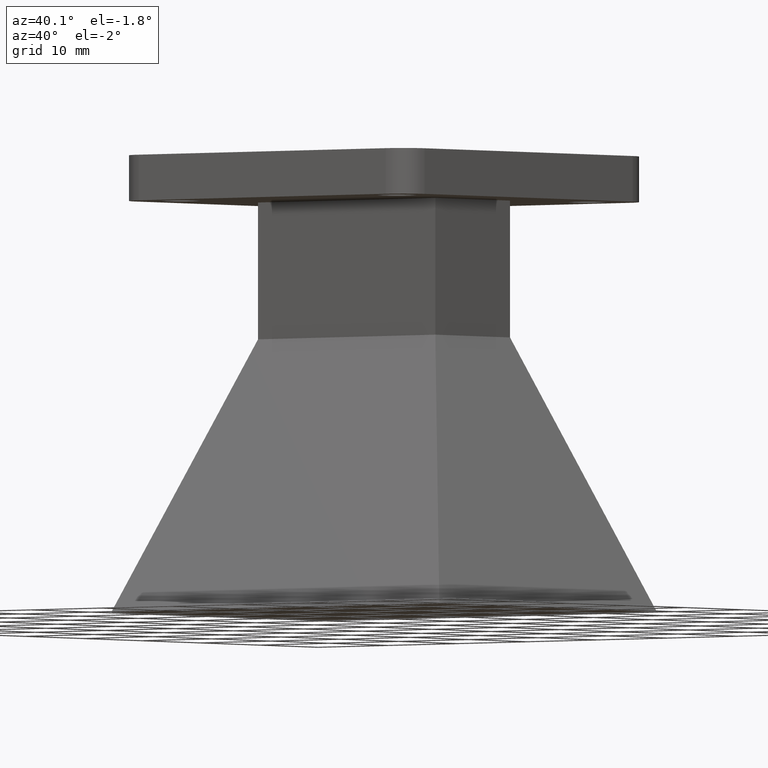
[diagram: clean part render]
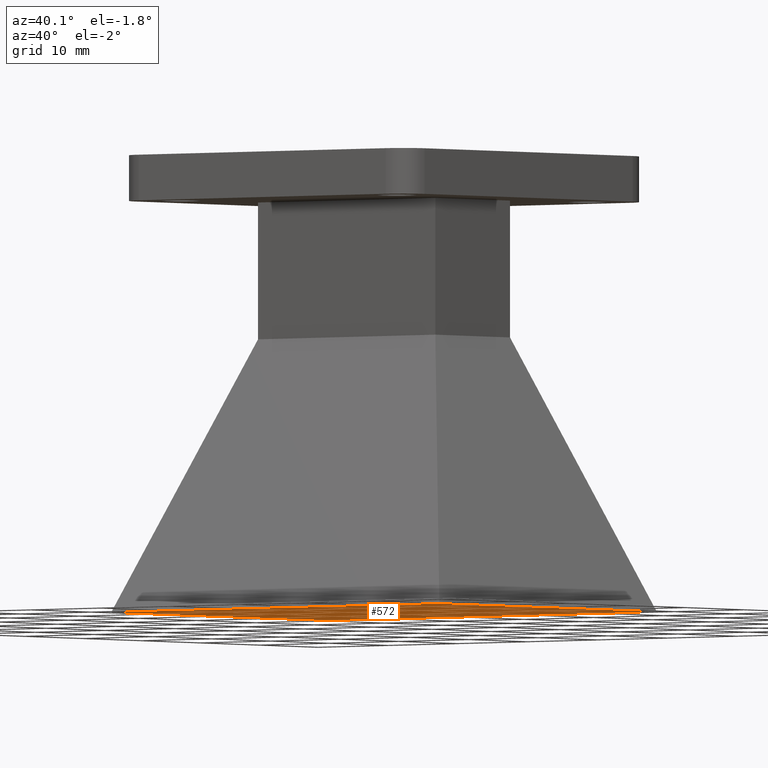
[diagram: same view with one face highlighted and labeled with its STEP entity id]
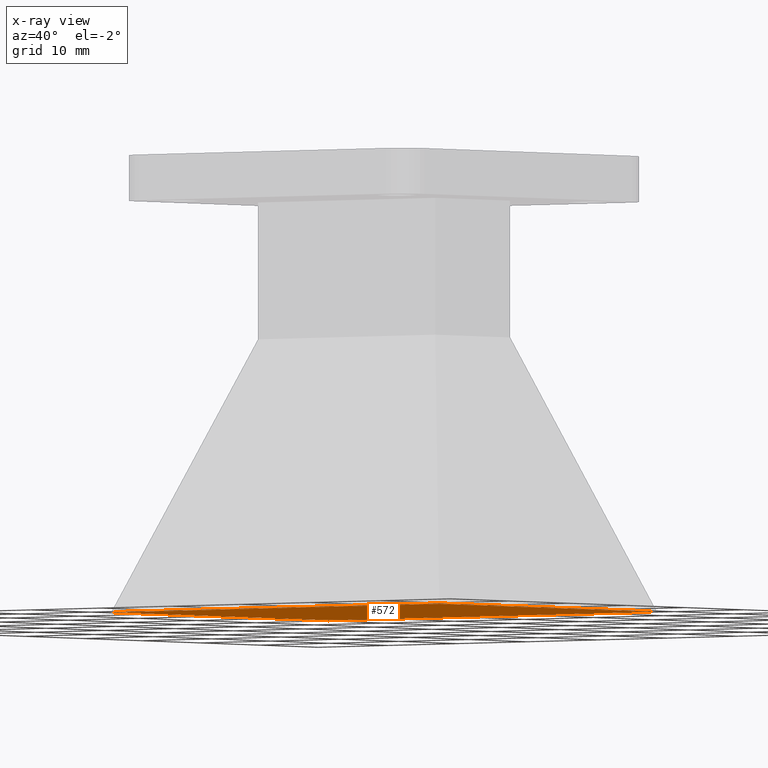
[diagram: x-ray of the same camera — body ghosted, the highlighted face saturated]
A machine part, auxiliary view. The second image highlights one B-rep face of the part: STEP entity #572.
The next image is the same camera in x-ray: the body ghosted, the highlighted face saturated — about 0% of this face is hidden behind the body in this view.
In plain terms, the highlighted planar face has unit normal (0, -0, 1).
Its self-contained STEP definition (entity closure, byte-faithful):
#29 = EDGE_CURVE ( 'NONE', #1112, #88, #875, .T. ) ;
#43 = FACE_OUTER_BOUND ( 'NONE', #396, .T. ) ;
#46 = ORIENTED_EDGE ( 'NONE', *, *, #29, .T. ) ;
#61 = EDGE_CURVE ( 'NONE', #691, #88, #898, .T. ) ;
#88 = VERTEX_POINT ( 'NONE', #183 ) ;
#167 = EDGE_CURVE ( 'NONE', #1126, #1112, #276, .T. ) ;
#176 = DIRECTION ( 'NONE',  ( -1.000000000000000000, -1.476360405086644100E-016, 0.0000000000000000000 ) ) ;
#183 = CARTESIAN_POINT ( 'NONE',  ( -0.9251968503937008100, 0.7283464566929130900, -1.968503937007874100 ) ) ;
#184 = CARTESIAN_POINT ( 'NONE',  ( 0.9251968503937011400, -0.7283464566929134200, -1.968503937007874100 ) ) ;
#246 = DIRECTION ( 'NONE',  ( 0.0000000000000000000, 1.000000000000000000, 0.0000000000000000000 ) ) ;
#256 = DIRECTION ( 'NONE',  ( 0.0000000000000000000, -0.0000000000000000000, 1.000000000000000000 ) ) ;
#276 = LINE ( 'NONE', #184, #786 ) ;
#366 = CARTESIAN_POINT ( 'NONE',  ( 0.9251968503937011400, 0.7283464566929134200, -1.968503937007874100 ) ) ;
#396 = EDGE_LOOP ( 'NONE', ( #526, #497, #46, #573 ) ) ;
#404 = VECTOR ( 'NONE', #176, 39.37007874015748100 ) ;
#436 = CARTESIAN_POINT ( 'NONE',  ( 0.9251968503937011400, -0.7283464566929134200, -1.968503937007874100 ) ) ;
#497 = ORIENTED_EDGE ( 'NONE', *, *, #167, .T. ) ;
#526 = ORIENTED_EDGE ( 'NONE', *, *, #1104, .F. ) ;
#530 = DIRECTION ( 'NONE',  ( 1.000000000000000000, 0.0000000000000000000, -0.0000000000000000000 ) ) ;
#531 = CARTESIAN_POINT ( 'NONE',  ( -0.9251968503937008100, -0.7283464566929136500, -1.968503937007874100 ) ) ;
#572 = ADVANCED_FACE ( 'NONE', ( #43 ), #788, .F. ) ;
#573 = ORIENTED_EDGE ( 'NONE', *, *, #61, .F. ) ;
#684 = CARTESIAN_POINT ( 'NONE',  ( -0.9251968503937008100, -0.7283464566929136500, -1.968503937007874100 ) ) ;
#685 = CARTESIAN_POINT ( 'NONE',  ( 0.9251968503937011400, -0.7283464566929134200, -1.968503937007874100 ) ) ;
#691 = VERTEX_POINT ( 'NONE', #366 ) ;
#776 = VECTOR ( 'NONE', #805, 39.37007874015748100 ) ;
#786 = VECTOR ( 'NONE', #1079, 39.37007874015748100 ) ;
#788 = PLANE ( 'NONE',  #1017 ) ;
#798 = CARTESIAN_POINT ( 'NONE',  ( 0.9251968503937011400, 0.7283464566929134200, -1.968503937007874100 ) ) ;
#805 = DIRECTION ( 'NONE',  ( 0.0000000000000000000, 1.000000000000000000, 0.0000000000000000000 ) ) ;
#820 = LINE ( 'NONE', #436, #1175 ) ;
#875 = LINE ( 'NONE', #531, #776 ) ;
#898 = LINE ( 'NONE', #798, #404 ) ;
#1017 = AXIS2_PLACEMENT_3D ( 'NONE', #1072, #256, #530 ) ;
#1072 = CARTESIAN_POINT ( 'NONE',  ( 0.0000000000000000000, 0.0000000000000000000, -1.968503937007874100 ) ) ;
#1079 = DIRECTION ( 'NONE',  ( -1.000000000000000000, -1.476360405086644100E-016, 0.0000000000000000000 ) ) ;
#1104 = EDGE_CURVE ( 'NONE', #1126, #691, #820, .T. ) ;
#1112 = VERTEX_POINT ( 'NONE', #684 ) ;
#1126 = VERTEX_POINT ( 'NONE', #685 ) ;
#1175 = VECTOR ( 'NONE', #246, 39.37007874015748100 ) ;